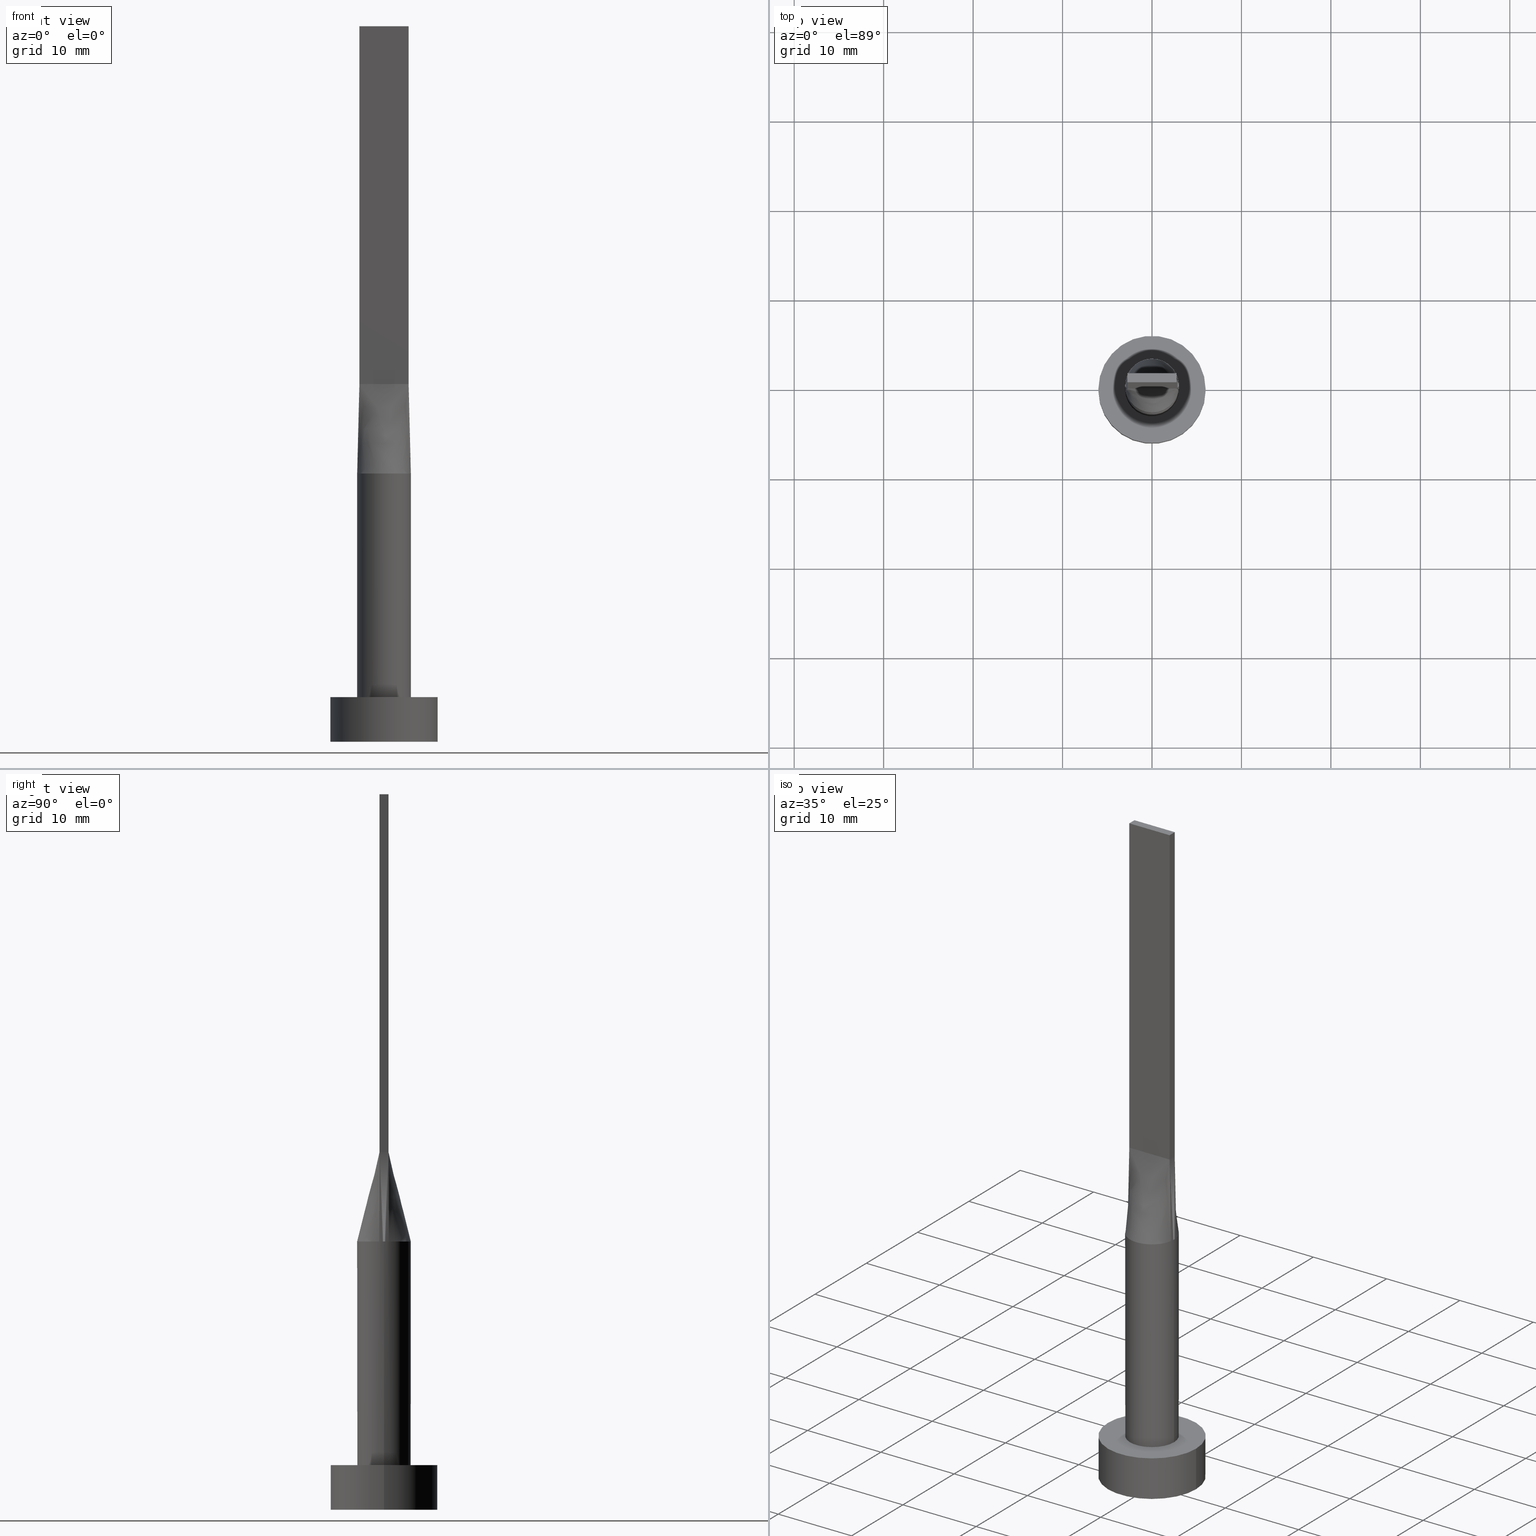
[diagram: canonical four-view strip — front | top / right | iso, engineering-drawing reading convention]
A machine part, canonical four-view strip (front | top / right | iso — engineering-drawing reading convention). The complete STEP part file that produces these views, byte-faithful:
ISO-10303-21;
HEADER;
FILE_DESCRIPTION (( 'STEP AP203' ),
    '1' );
FILE_NAME ('6269.STEP',
    '2023-02-13T10:31:17',
    ( '' ),
    ( '' ),
    'SwSTEP 2.0',
    'SolidWorks 2019',
    '' );
FILE_SCHEMA (( 'CONFIG_CONTROL_DESIGN' ));
ENDSEC;

DATA;
#1 = ORIENTED_EDGE ( 'NONE', *, *, #352, .F. ) ;
#2 = SECURITY_CLASSIFICATION ( '', '', #349 ) ;
#3 = DIRECTION ( 'NONE',  ( 0.000000000000000000, 0.000000000000000000, 1.000000000000000000 ) ) ;
#4 = DIRECTION ( 'NONE',  ( 0.000000000000000000, 0.000000000000000000, 1.000000000000000000 ) ) ;
#5 = CARTESIAN_POINT ( 'NONE',  ( -2.382399439808189356, -1.857547746650220599, 30.00000000000000711 ) ) ;
#6 =( NAMED_UNIT ( * ) SI_UNIT ( $, .STERADIAN. ) SOLID_ANGLE_UNIT ( ) );
#7 = FACE_OUTER_BOUND ( 'NONE', #514, .T. ) ;
#8 = B_SPLINE_CURVE_WITH_KNOTS ( 'NONE', 3,
 ( #234, #415, #73, #77, #217, #480, #266, #208, #390, #301, #80, #436, #434, #567, #303, #474, #431, #172 ),
 .UNSPECIFIED., .F., .F.,
 ( 4, 2, 2, 2, 2, 2, 2, 2, 4 ),
 ( 0.000000000000000000, 0.1250000000000000000, 0.2500000000000000000, 0.3750000000000000000, 0.5000000000000000000, 0.6250000000000000000, 0.7500000000000000000, 0.8750000000000000000, 1.000000000000000000 ),
 .UNSPECIFIED. ) ;
#9 = CARTESIAN_POINT ( 'NONE',  ( -2.850804865149861644, -0.5183281572999741682, 35.00000000000000000 ) ) ;
#10 = CARTESIAN_POINT ( 'NONE',  ( 0.000000000000000000, 0.000000000000000000, 30.00000000000000355 ) ) ;
#11 = DIRECTION ( 'NONE',  ( 1.000000000000000000, 0.000000000000000000, 0.000000000000000000 ) ) ;
#12 = EDGE_CURVE ( 'NONE', #359, #119, #130, .T. ) ;
#13 = AXIS2_PLACEMENT_3D ( 'NONE', #409, #458, #443 ) ;
#14 = LINE ( 'NONE', #149, #41 ) ;
#15 = CARTESIAN_POINT ( 'NONE',  ( 2.951609730299722401, -0.5366563145999492246, 30.00000000000000355 ) ) ;
#16 = DIRECTION ( 'NONE',  ( 1.000000000000000000, 0.000000000000000000, 0.000000000000000000 ) ) ;
#17 = LINE ( 'NONE', #389, #407 ) ;
#18 = ADVANCED_FACE ( 'NONE', ( #171 ), #348, .T. ) ;
#19 = CLOSED_SHELL ( 'NONE', ( #469, #291, #18, #489, #76, #358, #439, #419, #216, #561, #448, #203, #312, #307, #538 ) ) ;
#20 = VECTOR ( 'NONE', #340, 1000.000000000000114 ) ;
#21 = ORIENTED_EDGE ( 'NONE', *, *, #253, .F. ) ;
#22 = DATE_AND_TIME ( #261, #184 ) ;
#23 = LINE ( 'NONE', #381, #494 ) ;
#24 = DIRECTION ( 'NONE',  ( 0.000000000000000000, 0.000000000000000000, 1.000000000000000000 ) ) ;
#25 = CARTESIAN_POINT ( 'NONE',  ( 2.750000000000000000, -0.4999999999999997780, 40.00000000000000000 ) ) ;
#26 = ORIENTED_EDGE ( 'NONE', *, *, #400, .T. ) ;
#27 = CARTESIAN_POINT ( 'NONE',  ( -2.829409566978765334, 1.041313647073049298, 30.00000000000001066 ) ) ;
#28 = EDGE_CURVE ( 'NONE', #94, #29, #428, .T. ) ;
#29 = VERTEX_POINT ( 'NONE', #376 ) ;
#30 = CIRCLE ( 'NONE', #363, 3.000000000000000444 ) ;
#31 = CARTESIAN_POINT ( 'NONE',  ( -2.567367750129864845, -1.580669302822274691, 30.00000000000001066 ) ) ;
#32 = PERSON_AND_ORGANIZATION_ROLE ( 'creator' ) ;
#33 = DIRECTION ( 'NONE',  ( -0.000000000000000000, -0.000000000000000000, -1.000000000000000000 ) ) ;
#34 = DIRECTION ( 'NONE',  ( 1.000000000000000000, 0.000000000000000000, 0.000000000000000000 ) ) ;
#35 = CALENDAR_DATE ( 2023, 13, 2 ) ;
#36 = EDGE_CURVE ( 'NONE', #338, #280, #533, .T. ) ;
#37 = CARTESIAN_POINT ( 'NONE',  ( -2.291666666666666519, -0.4999999999999994449, 39.99999999999999289 ) ) ;
#38 = DIRECTION ( 'NONE',  ( -0.000000000000000000, -0.000000000000000000, -1.000000000000000000 ) ) ;
#39 = ORIENTED_EDGE ( 'NONE', *, *, #253, .T. ) ;
#40 = CALENDAR_DATE ( 2023, 13, 2 ) ;
#41 = VECTOR ( 'NONE', #497, 1000.000000000000114 ) ;
#42 = CARTESIAN_POINT ( 'NONE',  ( 0.000000000000000000, 0.000000000000000000, 5.000000000000000000 ) ) ;
#43 = ORIENTED_EDGE ( 'NONE', *, *, #271, .T. ) ;
#44 = DIRECTION ( 'NONE',  ( 0.000000000000000000, 0.000000000000000000, 1.000000000000000000 ) ) ;
#45 = EDGE_LOOP ( 'NONE', ( #311, #517 ) ) ;
#46 = LINE ( 'NONE', #181, #382 ) ;
#47 = DIRECTION ( 'NONE',  ( 1.000000000000000000, 0.000000000000000000, 0.000000000000000000 ) ) ;
#48 = CARTESIAN_POINT ( 'NONE',  ( -2.567367750129864401, 1.580669302822275357, 30.00000000000001421 ) ) ;
#49 = CARTESIAN_POINT ( 'NONE',  ( -2.983609730299723317, -0.3606563145999489572, 30.00000000000000355 ) ) ;
#50 = AXIS2_PLACEMENT_3D ( 'NONE', #413, #153, #495 ) ;
#51 = DIRECTION ( 'NONE',  ( -1.000000000000000000, 0.000000000000000000, 0.000000000000000000 ) ) ;
#52 = CARTESIAN_POINT ( 'NONE',  ( -1.833333333333333481, -0.4999999999999995559, 39.99999999999999289 ) ) ;
#53 = CARTESIAN_POINT ( 'NONE',  ( 0.2291666666666662966, 0.5000000000000002220, 40.00000000000000000 ) ) ;
#54 = CARTESIAN_POINT ( 'NONE',  ( -2.750000000000000000, 0.1666666666666652696, 39.99999999999999289 ) ) ;
#55 = CARTESIAN_POINT ( 'NONE',  ( 2.750000000000000000, 0.5000000000000002220, 80.00000000000000000 ) ) ;
#56 = CARTESIAN_POINT ( 'NONE',  ( 0.4583333333333330373, 0.5000000000000002220, 39.99999999999999289 ) ) ;
#57 = APPROVAL ( #339, 'NEUR�EN�' ) ;
#58 = CARTESIAN_POINT ( 'NONE',  ( -2.382399439808186692, 1.857547746650221265, 30.00000000000001066 ) ) ;
#59 = CARTESIAN_POINT ( 'NONE',  ( 0.000000000000000000, 0.000000000000000000, 30.00000000000000355 ) ) ;
#60 = VECTOR ( 'NONE', #365, 1000.000000000000000 ) ;
#61 = DIRECTION ( 'NONE',  ( 0.02015674154923146819, -0.003664862099860173583, 0.9997901152521495582 ) ) ;
#62 = AXIS2_PLACEMENT_3D ( 'NONE', #59, #298, #11 ) ;
#63 = CARTESIAN_POINT ( 'NONE',  ( 2.829409566978765334, -1.041313647073049742, 30.00000000000001066 ) ) ;
#64 = COORDINATED_UNIVERSAL_TIME_OFFSET ( 1, 0, .AHEAD. ) ;
#65 = EDGE_CURVE ( 'NONE', #535, #359, #289, .T. ) ;
#66 = ORIENTED_EDGE ( 'NONE', *, *, #127, .T. ) ;
#67 = CARTESIAN_POINT ( 'NONE',  ( 3.000000000000000444, 3.673940397442060361E-16, 30.00000000000000355 ) ) ;
#68 = DATE_AND_TIME ( #120, #176 ) ;
#69 = DIRECTION ( 'NONE',  ( 1.000000000000000000, 0.000000000000000000, 0.000000000000000000 ) ) ;
#70 = CIRCLE ( 'NONE', #148, 3.000000000000000444 ) ;
#71 = SHAPE_DEFINITION_REPRESENTATION ( #193, #268 ) ;
#72 = DIRECTION ( 'NONE',  ( 1.000000000000000000, 0.000000000000000000, -0.000000000000000000 ) ) ;
#73 = CARTESIAN_POINT ( 'NONE',  ( 2.829409566978765778, 1.041313647073049298, 30.00000000000001421 ) ) ;
#74 = ORIENTED_EDGE ( 'NONE', *, *, #504, .F. ) ;
#75 = DATE_TIME_ROLE ( 'creation_date' ) ;
#76 = ADVANCED_FACE ( 'NONE', ( #137 ), #405, .F. ) ;
#77 = CARTESIAN_POINT ( 'NONE',  ( 2.567367750129863957, 1.580669302822274913, 30.00000000000001066 ) ) ;
#78 = EDGE_LOOP ( 'NONE', ( #424, #129, #440, #575 ) ) ;
#79 = CARTESIAN_POINT ( 'NONE',  ( -2.750000000000000000, -0.4999999999999994449, 40.00000000000000000 ) ) ;
#80 = CARTESIAN_POINT ( 'NONE',  ( -0.8331239790496237640, 2.909606296598777231, 30.00000000000000000 ) ) ;
#81 = VERTEX_POINT ( 'NONE', #185 ) ;
#82 = VECTOR ( 'NONE', #422, 1000.000000000000000 ) ;
#83 = CARTESIAN_POINT ( 'NONE',  ( 2.951609730299722845, 0.5366563145999491136, 30.00000000000000355 ) ) ;
#84 = VECTOR ( 'NONE', #387, 1000.000000000000000 ) ;
#85 = APPROVAL_DATE_TIME ( #68, #371 ) ;
#86 = ORIENTED_EDGE ( 'NONE', *, *, #511, .F. ) ;
#87 = EDGE_CURVE ( 'NONE', #89, #119, #501, .T. ) ;
#88 = CARTESIAN_POINT ( 'NONE',  ( -2.750000000000000000, -0.4999999999999994449, 80.00000000000000000 ) ) ;
#89 = VERTEX_POINT ( 'NONE', #110 ) ;
#90 = DIRECTION ( 'NONE',  ( 1.000000000000000000, 0.000000000000000000, -0.000000000000000000 ) ) ;
#91 = APPROVAL_ROLE ( '' ) ;
#92 = AXIS2_PLACEMENT_3D ( 'NONE', #477, #38, #411 ) ;
#93 = ORIENTED_EDGE ( 'NONE', *, *, #144, .T. ) ;
#94 = VERTEX_POINT ( 'NONE', #198 ) ;
#95 = FACE_OUTER_BOUND ( 'NONE', #202, .T. ) ;
#96 = ORIENTED_EDGE ( 'NONE', *, *, #337, .T. ) ;
#97 = CARTESIAN_POINT ( 'NONE',  ( 0.000000000000000000, 0.000000000000000000, 30.00000000000000355 ) ) ;
#98 = CARTESIAN_POINT ( 'NONE',  ( -6.000000000000000888, 0.000000000000000000, 0.000000000000000000 ) ) ;
#99 = MECHANICAL_CONTEXT ( 'NONE', #145, 'mechanical' ) ;
#100 = CARTESIAN_POINT ( 'NONE',  ( -1.604166666666666963, 0.5000000000000002220, 39.99999999999999289 ) ) ;
#101 =( NAMED_UNIT ( * ) PLANE_ANGLE_UNIT ( ) SI_UNIT ( $, .RADIAN. ) );
#102 = LINE ( 'NONE', #378, #60 ) ;
#103 = PERSON_AND_ORGANIZATION ( #558, #565 ) ;
#104 = AXIS2_PLACEMENT_3D ( 'NONE', #204, #385, #247 ) ;
#105 = CYLINDRICAL_SURFACE ( 'NONE', #227, 3.000000000000000444 ) ;
#106 = EDGE_CURVE ( 'NONE', #568, #338, #102, .T. ) ;
#107 = ORIENTED_EDGE ( 'NONE', *, *, #226, .T. ) ;
#108 = CARTESIAN_POINT ( 'NONE',  ( 0.000000000000000000, 0.000000000000000000, 0.000000000000000000 ) ) ;
#109 = DIRECTION ( 'NONE',  ( 0.000000000000000000, 0.000000000000000000, 1.000000000000000000 ) ) ;
#110 = CARTESIAN_POINT ( 'NONE',  ( -2.951881273711813858, 0.5367053345652121887, 30.00000000000000355 ) ) ;
#111 = CARTESIAN_POINT ( 'NONE',  ( 2.750000000000000000, -0.4999999999999997780, 80.00000000000000000 ) ) ;
#112 = EDGE_CURVE ( 'NONE', #334, #516, #506, .T. ) ;
#113 = AXIS2_PLACEMENT_3D ( 'NONE', #532, #486, #90 ) ;
#114 = CIRCLE ( 'NONE', #235, 6.000000000000000888 ) ;
#115 = EDGE_LOOP ( 'NONE', ( #250, #478, #142, #470 ) ) ;
#116 = CARTESIAN_POINT ( 'NONE',  ( 2.520833333333333037, -0.4999999999999997780, 39.99999999999999289 ) ) ;
#117 = CARTESIAN_POINT ( 'NONE',  ( -2.750000000000000000, 0.5000000000000002220, 80.00000000000000000 ) ) ;
#118 = CARTESIAN_POINT ( 'NONE',  ( 2.983609730299722429, -0.3606563145999500120, 30.00000000000000355 ) ) ;
#119 = VERTEX_POINT ( 'NONE', #488 ) ;
#120 = CALENDAR_DATE ( 2023, 13, 2 ) ;
#121 = PLANE ( 'NONE',  #388 ) ;
#122 = CC_DESIGN_SECURITY_CLASSIFICATION ( #2, ( #508 ) ) ;
#123 = FACE_OUTER_BOUND ( 'NONE', #525, .T. ) ;
#124 = EDGE_CURVE ( 'NONE', #535, #163, #492, .T. ) ;
#125 = COORDINATED_UNIVERSAL_TIME_OFFSET ( 1, 0, .AHEAD. ) ;
#126 = CARTESIAN_POINT ( 'NONE',  ( 2.750000000000000000, -0.1666666666666653529, 39.99999999999999289 ) ) ;
#127 = EDGE_CURVE ( 'NONE', #516, #29, #237, .T. ) ;
#128 = VECTOR ( 'NONE', #444, 1000.000000000000000 ) ;
#129 = ORIENTED_EDGE ( 'NONE', *, *, #284, .F. ) ;
#130 = LINE ( 'NONE', #309, #132 ) ;
#131 = EDGE_LOOP ( 'NONE', ( #86, #269, #437, #399 ) ) ;
#132 = VECTOR ( 'NONE', #220, 1000.000000000000000 ) ;
#133 = CC_DESIGN_PERSON_AND_ORGANIZATION_ASSIGNMENT ( #219, #32, ( #508 ) ) ;
#134 = VECTOR ( 'NONE', #151, 1000.000000000000000 ) ;
#135 = ORIENTED_EDGE ( 'NONE', *, *, #284, .T. ) ;
#136 = CARTESIAN_POINT ( 'NONE',  ( 2.567367750129863957, 1.580669302822274913, 30.00000000000001066 ) ) ;
#137 = FACE_OUTER_BOUND ( 'NONE', #177, .T. ) ;
#138 = CARTESIAN_POINT ( 'NONE',  ( 2.829409566978765778, 1.041313647073049298, 30.00000000000001421 ) ) ;
#139 = CARTESIAN_POINT ( 'NONE',  ( 0.000000000000000000, 0.000000000000000000, 5.000000000000000000 ) ) ;
#140 = CARTESIAN_POINT ( 'NONE',  ( 1.566158656300001395, -2.589797565249319256, 30.00000000000000000 ) ) ;
#141 = PERSON_AND_ORGANIZATION ( #558, #565 ) ;
#142 = ORIENTED_EDGE ( 'NONE', *, *, #226, .F. ) ;
#143 = CARTESIAN_POINT ( 'NONE',  ( 0.000000000000000000, 0.000000000000000000, 0.000000000000000000 ) ) ;
#144 = EDGE_CURVE ( 'NONE', #578, #531, #23, .T. ) ;
#145 = APPLICATION_CONTEXT ( 'configuration controlled 3d designs of mechanical parts and assemblies' ) ;
#146 = UNCERTAINTY_MEASURE_WITH_UNIT (LENGTH_MEASURE( 1.000000000000000082E-05 ), #156, 'distance_accuracy_value', 'NONE');
#147 = CARTESIAN_POINT ( 'NONE',  ( -2.750000000000000000, -0.3333333333333339255, 39.99999999999999289 ) ) ;
#148 = AXIS2_PLACEMENT_3D ( 'NONE', #500, #109, #455 ) ;
#149 = CARTESIAN_POINT ( 'NONE',  ( 2.850804865149861200, -0.5183281572999745013, 35.00000000000000000 ) ) ;
#150 = CARTESIAN_POINT ( 'NONE',  ( -0.9166666666666669627, 0.5000000000000002220, 39.99999999999999289 ) ) ;
#151 = DIRECTION ( 'NONE',  ( -0.000000000000000000, -0.000000000000000000, -1.000000000000000000 ) ) ;
#152 = CARTESIAN_POINT ( 'NONE',  ( -2.750000000000000000, -0.4999999999999994449, 80.00000000000000000 ) ) ;
#153 = DIRECTION ( 'NONE',  ( 0.000000000000000000, -1.000000000000000000, 0.000000000000000000 ) ) ;
#154 = APPROVAL_ROLE ( '' ) ;
#155 = CC_DESIGN_PERSON_AND_ORGANIZATION_ASSIGNMENT ( #174, #355, ( #2 ) ) ;
#156 =( LENGTH_UNIT ( ) NAMED_UNIT ( * ) SI_UNIT ( .MILLI., .METRE. ) );
#157 = DIRECTION ( 'NONE',  ( -1.000000000000000000, 0.000000000000000000, 0.000000000000000000 ) ) ;
#158 = CALENDAR_DATE ( 2023, 13, 2 ) ;
#159 = ORIENTED_EDGE ( 'NONE', *, *, #511, .T. ) ;
#160 = CARTESIAN_POINT ( 'NONE',  ( -2.750000000000000000, -0.4999999999999994449, 40.00000000000000000 ) ) ;
#161 = FACE_OUTER_BOUND ( 'NONE', #304, .T. ) ;
#162 = CARTESIAN_POINT ( 'NONE',  ( 2.951609730299722401, -0.5366563145999498907, 30.00000000000000355 ) ) ;
#163 = VERTEX_POINT ( 'NONE', #117 ) ;
#164 = CARTESIAN_POINT ( 'NONE',  ( -2.291666666666666519, 0.5000000000000002220, 39.99999999999999289 ) ) ;
#165 = CC_DESIGN_DATE_AND_TIME_ASSIGNMENT ( #347, #264, ( #2 ) ) ;
#166 = ORIENTED_EDGE ( 'NONE', *, *, #412, .T. ) ;
#167 = AXIS2_PLACEMENT_3D ( 'NONE', #108, #450, #47 ) ;
#168 = EDGE_CURVE ( 'NONE', #568, #270, #459, .T. ) ;
#169 = CARTESIAN_POINT ( 'NONE',  ( -0.4583333333333340365, -0.4999999999999995559, 39.99999999999999289 ) ) ;
#170 = CARTESIAN_POINT ( 'NONE',  ( -2.750000000000000000, 0.5000000000000002220, 40.00000000000000000 ) ) ;
#171 = FACE_OUTER_BOUND ( 'NONE', #369, .T. ) ;
#172 = CARTESIAN_POINT ( 'NONE',  ( -2.951881273711813858, 0.5367053345652121887, 30.00000000000000355 ) ) ;
#173 = EDGE_LOOP ( 'NONE', ( #259, #212, #475, #528, #467, #421 ) ) ;
#174 = PERSON_AND_ORGANIZATION ( #558, #565 ) ;
#175 = B_SPLINE_SURFACE_WITH_KNOTS ( 'NONE', 3, 1, ( 
 ( #479, #170 ),
 ( #215, #397 ),
 ( #364, #54 ),
 ( #539, #317 ),
 ( #49, #147 ),
 ( #328, #551 ) ),
 .UNSPECIFIED., .F., .F., .F.,
 ( 4, 2, 4 ),
 ( 2, 2 ),
 ( 0.000000000000000000, 0.5000000000000000000, 1.000000000000000000 ),
 ( 0.000000000000000000, 1.000000000000000000 ),
 .UNSPECIFIED. ) ;
#176 = LOCAL_TIME ( 11, 31, 17.00000000000000000, #341 ) ;
#177 = EDGE_LOOP ( 'NONE', ( #466, #432 ) ) ;
#178 = CARTESIAN_POINT ( 'NONE',  ( 2.999804865149861666, 7.183978618307599791E-16, 30.00000000000000355 ) ) ;
#179 = DATE_AND_TIME ( #35, #310 ) ;
#180 = ORIENTED_EDGE ( 'NONE', *, *, #188, .T. ) ;
#181 = CARTESIAN_POINT ( 'NONE',  ( 6.000000000000000888, 7.347880794884120722E-16, 5.000000000000000000 ) ) ;
#182 = EDGE_CURVE ( 'NONE', #163, #481, #461, .T. ) ;
#183 = ORIENTED_EDGE ( 'NONE', *, *, #352, .T. ) ;
#184 = LOCAL_TIME ( 11, 31, 17.00000000000000000, #125 ) ;
#185 = CARTESIAN_POINT ( 'NONE',  ( -2.999804865149861666, -2.046477192139111704E-15, 30.00000000000000355 ) ) ;
#186 = CARTESIAN_POINT ( 'NONE',  ( 2.750000000000000000, 0.5000000000000002220, 40.00000000000000000 ) ) ;
#187 = CARTESIAN_POINT ( 'NONE',  ( -0.2291666666666674346, -0.4999999999999995559, 40.00000000000000000 ) ) ;
#188 = EDGE_CURVE ( 'NONE', #29, #94, #361, .T. ) ;
#189 = ORIENTED_EDGE ( 'NONE', *, *, #430, .T. ) ;
#190 = CARTESIAN_POINT ( 'NONE',  ( 0.000000000000000000, 0.000000000000000000, 5.000000000000000000 ) ) ;
#191 = DIRECTION ( 'NONE',  ( -0.000000000000000000, -0.000000000000000000, -1.000000000000000000 ) ) ;
#192 = DIRECTION ( 'NONE',  ( -0.000000000000000000, -0.000000000000000000, -1.000000000000000000 ) ) ;
#193 = PRODUCT_DEFINITION_SHAPE ( 'NONE', 'NONE',  #462 ) ;
#194 = CARTESIAN_POINT ( 'NONE',  ( -2.750000000000000000, 0.5000000000000002220, 80.00000000000000000 ) ) ;
#195 = VECTOR ( 'NONE', #191, 1000.000000000000000 ) ;
#196 = DIRECTION ( 'NONE',  ( -1.000000000000000000, 0.000000000000000000, 0.000000000000000000 ) ) ;
#197 = CARTESIAN_POINT ( 'NONE',  ( 1.145833333333333037, 0.5000000000000002220, 39.99999999999999289 ) ) ;
#198 = CARTESIAN_POINT ( 'NONE',  ( -3.000000000000000444, 0.000000000000000000, 5.000000000000000000 ) ) ;
#199 = CARTESIAN_POINT ( 'NONE',  ( 2.291666666666666075, -0.4999999999999997780, 39.99999999999999289 ) ) ;
#200 = ORIENTED_EDGE ( 'NONE', *, *, #182, .T. ) ;
#201 = ORIENTED_EDGE ( 'NONE', *, *, #12, .F. ) ;
#202 = EDGE_LOOP ( 'NONE', ( #166, #96, #518, #43 ) ) ;
#203 = ADVANCED_FACE ( 'NONE', ( #383 ), #121, .F. ) ;
#204 = CARTESIAN_POINT ( 'NONE',  ( 0.000000000000000000, 0.000000000000000000, 5.000000000000000000 ) ) ;
#205 = CARTESIAN_POINT ( 'NONE',  ( 2.750000000000000000, -0.3333333333333324267, 39.99999999999999289 ) ) ;
#206 = CARTESIAN_POINT ( 'NONE',  ( -2.750000000000000000, 0.5000000000000002220, 80.00000000000000000 ) ) ;
#207 = VECTOR ( 'NONE', #61, 1000.000000000000114 ) ;
#208 = CARTESIAN_POINT ( 'NONE',  ( 0.8331239790496237640, 2.909606296598776787, 30.00000000000000355 ) ) ;
#209 = AXIS2_PLACEMENT_3D ( 'NONE', #139, #579, #51 ) ;
#210 = EDGE_CURVE ( 'NONE', #531, #359, #17, .T. ) ;
#211 = LINE ( 'NONE', #88, #353 ) ;
#212 = ORIENTED_EDGE ( 'NONE', *, *, #112, .F. ) ;
#213 = DIRECTION ( 'NONE',  ( 1.000000000000000000, -5.913830031739115543E-17, 0.000000000000000000 ) ) ;
#214 = CC_DESIGN_APPROVAL ( #371, ( #462 ) ) ;
#215 = CARTESIAN_POINT ( 'NONE',  ( -2.983609730299722429, 0.3606563145999497344, 30.00000000000000355 ) ) ;
#216 = ADVANCED_FACE ( 'NONE', ( #577 ), #175, .T. ) ;
#217 = CARTESIAN_POINT ( 'NONE',  ( 2.382399439808187580, 1.857547746650221709, 30.00000000000000711 ) ) ;
#218 = CARTESIAN_POINT ( 'NONE',  ( 2.750000000000000000, -0.4999999999999997780, 40.00000000000000000 ) ) ;
#219 = PERSON_AND_ORGANIZATION ( #558, #565 ) ;
#220 = DIRECTION ( 'NONE',  ( -1.000000000000000000, -0.000000000000000000, -0.000000000000000000 ) ) ;
#221 = CARTESIAN_POINT ( 'NONE',  ( -1.604166666666666963, -0.4999999999999995559, 39.99999999999999289 ) ) ;
#222 = DESIGN_CONTEXT ( 'detailed design', #571, 'design' ) ;
#223 = DIRECTION ( 'NONE',  ( -0.000000000000000000, -0.000000000000000000, -1.000000000000000000 ) ) ;
#224 = CARTESIAN_POINT ( 'NONE',  ( 2.750000000000000000, 0.5000000000000002220, 80.00000000000000000 ) ) ;
#225 = COORDINATED_UNIVERSAL_TIME_OFFSET ( 1, 0, .AHEAD. ) ;
#226 = EDGE_CURVE ( 'NONE', #550, #535, #322, .T. ) ;
#227 = AXIS2_PLACEMENT_3D ( 'NONE', #10, #192, #157 ) ;
#228 = DIRECTION ( 'NONE',  ( 0.000000000000000000, 0.000000000000000000, 1.000000000000000000 ) ) ;
#229 = CARTESIAN_POINT ( 'NONE',  ( -0.8331239790496237640, 2.909606296598777231, 30.00000000000000000 ) ) ;
#230 = B_SPLINE_SURFACE_WITH_KNOTS ( 'NONE', 3, 1, ( 
 ( #406, #186 ),
 ( #366, #542 ),
 ( #138, #276 ),
 ( #136, #491 ),
 ( #368, #496 ),
 ( #410, #197 ),
 ( #449, #324 ),
 ( #279, #56 ),
 ( #581, #53 ),
 ( #402, #537 ),
 ( #229, #232 ),
 ( #373, #150 ),
 ( #329, #452 ),
 ( #58, #100 ),
 ( #48, #296 ),
 ( #27, #164 ),
 ( #414, #285 ),
 ( #505, #377 ) ),
 .UNSPECIFIED., .F., .F., .F.,
 ( 4, 2, 2, 2, 2, 2, 2, 2, 4 ),
 ( 2, 2 ),
 ( 0.000000000000000000, 0.1250000000000000000, 0.2500000000000000000, 0.3750000000000000000, 0.5000000000000000000, 0.6250000000000000000, 0.7500000000000000000, 0.8750000000000000000, 1.000000000000000000 ),
 ( 0.000000000000000000, 1.000000000000000000 ),
 .UNSPECIFIED. ) ;
#231 = CARTESIAN_POINT ( 'NONE',  ( 2.750000000000000000, -0.4999999999999997780, 80.00000000000000000 ) ) ;
#232 = CARTESIAN_POINT ( 'NONE',  ( -0.4583333333333337034, 0.5000000000000002220, 39.99999999999999289 ) ) ;
#233 = LINE ( 'NONE', #453, #20 ) ;
#234 = CARTESIAN_POINT ( 'NONE',  ( 2.951871110830718514, 0.5367036202482695639, 30.00000000000000355 ) ) ;
#235 = AXIS2_PLACEMENT_3D ( 'NONE', #42, #44, #34 ) ;
#236 = APPROVAL ( #425, 'NEUR�EN�' ) ;
#237 = LINE ( 'NONE', #67, #404 ) ;
#238 = CARTESIAN_POINT ( 'NONE',  ( 0.000000000000000000, 0.000000000000000000, 5.000000000000000000 ) ) ;
#239 = APPROVAL_ROLE ( '' ) ;
#240 = ORIENTED_EDGE ( 'NONE', *, *, #36, .T. ) ;
#241 = DIRECTION ( 'NONE',  ( 0.000000000000000000, -1.000000000000000000, 0.000000000000000000 ) ) ;
#242 = ORIENTED_EDGE ( 'NONE', *, *, #210, .F. ) ;
#243 = FACE_OUTER_BOUND ( 'NONE', #254, .T. ) ;
#244 = EDGE_CURVE ( 'NONE', #163, #119, #281, .T. ) ;
#245 = PERSON_AND_ORGANIZATION ( #558, #565 ) ;
#246 = AXIS2_PLACEMENT_3D ( 'NONE', #293, #252, #69 ) ;
#247 = DIRECTION ( 'NONE',  ( 1.000000000000000000, 0.000000000000000000, 0.000000000000000000 ) ) ;
#248 = CARTESIAN_POINT ( 'NONE',  ( 0.000000000000000000, 0.000000000000000000, 30.00000000000000355 ) ) ;
#249 = ORIENTED_EDGE ( 'NONE', *, *, #124, .T. ) ;
#250 = ORIENTED_EDGE ( 'NONE', *, *, #210, .T. ) ;
#251 = PERSON_AND_ORGANIZATION ( #558, #565 ) ;
#252 = DIRECTION ( 'NONE',  ( 0.000000000000000000, 0.000000000000000000, 1.000000000000000000 ) ) ;
#253 = EDGE_CURVE ( 'NONE', #89, #81, #70, .T. ) ;
#254 = EDGE_LOOP ( 'NONE', ( #267, #356, #344, #515 ) ) ;
#255 = CARTESIAN_POINT ( 'NONE',  ( 2.999609730299722887, 0.1803281572999744509, 30.00000000000000355 ) ) ;
#256 = CARTESIAN_POINT ( 'NONE',  ( -2.829409566978767110, -1.041313647073048854, 30.00000000000001421 ) ) ;
#257 = AXIS2_PLACEMENT_3D ( 'NONE', #556, #318, #541 ) ;
#258 = APPROVAL_PERSON_ORGANIZATION ( #251, #236, #91 ) ;
#259 = ORIENTED_EDGE ( 'NONE', *, *, #127, .F. ) ;
#260 = CARTESIAN_POINT ( 'NONE',  ( 2.750000000000000000, 0.5000000000000002220, 40.00000000000000000 ) ) ;
#261 = CALENDAR_DATE ( 2023, 13, 2 ) ;
#262 = EDGE_LOOP ( 'NONE', ( #39, #354, #321, #384, #313 ) ) ;
#263 = ORIENTED_EDGE ( 'NONE', *, *, #106, .T. ) ;
#264 = DATE_TIME_ROLE ( 'classification_date' ) ;
#265 = CC_DESIGN_DATE_AND_TIME_ASSIGNMENT ( #22, #75, ( #462 ) ) ;
#266 = CARTESIAN_POINT ( 'NONE',  ( 1.566158656300002061, 2.589797565249318811, 30.00000000000000000 ) ) ;
#267 = ORIENTED_EDGE ( 'NONE', *, *, #12, .T. ) ;
#268 = ADVANCED_BREP_SHAPE_REPRESENTATION ( '6269', ( #569, #13 ), #446 ) ;
#269 = ORIENTED_EDGE ( 'NONE', *, *, #504, .T. ) ;
#270 = VERTEX_POINT ( 'NONE', #417 ) ;
#271 = EDGE_CURVE ( 'NONE', #578, #485, #278, .T. ) ;
#272 = PLANE ( 'NONE',  #302 ) ;
#273 = CARTESIAN_POINT ( 'NONE',  ( -1.145833333333333703, -0.4999999999999995559, 39.99999999999999289 ) ) ;
#274 = CARTESIAN_POINT ( 'NONE',  ( 0.000000000000000000, 0.000000000000000000, 0.000000000000000000 ) ) ;
#275 = DIRECTION ( 'NONE',  ( -1.000000000000000000, 0.000000000000000000, 0.000000000000000000 ) ) ;
#276 = CARTESIAN_POINT ( 'NONE',  ( 2.291666666666666519, 0.5000000000000002220, 39.99999999999999289 ) ) ;
#277 = APPROVAL_PERSON_ORGANIZATION ( #287, #57, #239 ) ;
#278 = LINE ( 'NONE', #9, #416 ) ;
#279 = CARTESIAN_POINT ( 'NONE',  ( 0.8331239790496237640, 2.909606296598776787, 30.00000000000000355 ) ) ;
#280 = VERTEX_POINT ( 'NONE', #553 ) ;
#281 = LINE ( 'NONE', #194, #134 ) ;
#282 = FACE_OUTER_BOUND ( 'NONE', #131, .T. ) ;
#283 = PLANE ( 'NONE',  #50 ) ;
#284 = EDGE_CURVE ( 'NONE', #481, #578, #367, .T. ) ;
#286 = DIRECTION ( 'NONE',  ( 0.000000000000000000, 1.000000000000000000, 0.000000000000000000 ) ) ;
#285 = CARTESIAN_POINT ( 'NONE',  ( -2.520833333333333037, 0.5000000000000002220, 39.99999999999999289 ) ) ;
#287 = PERSON_AND_ORGANIZATION ( #558, #565 ) ;
#288 = CIRCLE ( 'NONE', #167, 6.000000000000000888 ) ;
#289 = LINE ( 'NONE', #552, #342 ) ;
#290 = DIRECTION ( 'NONE',  ( 1.000000000000000000, -5.913830031739115543E-17, 0.000000000000000000 ) ) ;
#291 = ADVANCED_FACE ( 'NONE', ( #282 ), #441, .T. ) ;
#292 = VERTEX_POINT ( 'NONE', #401 ) ;
#293 = CARTESIAN_POINT ( 'NONE',  ( 0.000000000000000000, 0.000000000000000000, 5.000000000000000000 ) ) ;
#294 = LOCAL_TIME ( 11, 31, 17.00000000000000000, #64 ) ;
#295 = CARTESIAN_POINT ( 'NONE',  ( -2.750000000000000000, 0.5000000000000002220, 80.00000000000000000 ) ) ;
#296 = CARTESIAN_POINT ( 'NONE',  ( -1.833333333333333481, 0.5000000000000002220, 39.99999999999999289 ) ) ;
#297 = ORIENTED_EDGE ( 'NONE', *, *, #392, .F. ) ;
#298 = DIRECTION ( 'NONE',  ( 0.000000000000000000, 0.000000000000000000, 1.000000000000000000 ) ) ;
#299 = CC_DESIGN_PERSON_AND_ORGANIZATION_ASSIGNMENT ( #476, #468, ( #508 ) ) ;
#300 = DIRECTION ( 'NONE',  ( -0.000000000000000000, 0.000000000000000000, -1.000000000000000000 ) ) ;
#301 = CARTESIAN_POINT ( 'NONE',  ( -0.4172881767044976375, 2.999999999999999556, 29.99999999999999645 ) ) ;
#302 = AXIS2_PLACEMENT_3D ( 'NONE', #331, #549, #502 ) ;
#303 = CARTESIAN_POINT ( 'NONE',  ( -2.567367750129864401, 1.580669302822275357, 30.00000000000001421 ) ) ;
#304 = EDGE_LOOP ( 'NONE', ( #297, #66, #180, #574, #21, #1 ) ) ;
#305 = CYLINDRICAL_SURFACE ( 'NONE', #92, 3.000000000000000444 ) ;
#306 = EDGE_LOOP ( 'NONE', ( #183, #545, #201, #562 ) ) ;
#307 = ADVANCED_FACE ( 'NONE', ( #319 ), #447, .F. ) ;
#308 = PLANE ( 'NONE',  #113 ) ;
#309 = CARTESIAN_POINT ( 'NONE',  ( -2.750000000000000000, 0.5000000000000002220, 40.00000000000000000 ) ) ;
#310 = LOCAL_TIME ( 11, 31, 17.00000000000000000, #225 ) ;
#311 = ORIENTED_EDGE ( 'NONE', *, *, #28, .F. ) ;
#312 = ADVANCED_FACE ( 'NONE', ( #7 ), #272, .F. ) ;
#313 = ORIENTED_EDGE ( 'NONE', *, *, #87, .F. ) ;
#314 = FACE_OUTER_BOUND ( 'NONE', #306, .T. ) ;
#315 = DIRECTION ( 'NONE',  ( -0.02015674154923150635, -0.003664862099860238635, -0.9997901152521495582 ) ) ;
#316 = CARTESIAN_POINT ( 'NONE',  ( -1.882426928433514224, -2.362790634184934291, 30.00000000000000355 ) ) ;
#317 = CARTESIAN_POINT ( 'NONE',  ( -2.750000000000000000, -0.1666666666666678787, 39.99999999999999289 ) ) ;
#318 = DIRECTION ( 'NONE',  ( 0.000000000000000000, 0.000000000000000000, 1.000000000000000000 ) ) ;
#319 = FACE_OUTER_BOUND ( 'NONE', #115, .T. ) ;
#320 = PERSON_AND_ORGANIZATION_ROLE ( 'design_owner' ) ;
#321 = ORIENTED_EDGE ( 'NONE', *, *, #271, .F. ) ;
#322 = LINE ( 'NONE', #231, #484 ) ;
#323 = CARTESIAN_POINT ( 'NONE',  ( -2.850804865149861200, 0.5183281572999746123, 35.00000000000000000 ) ) ;
#324 = CARTESIAN_POINT ( 'NONE',  ( 0.9166666666666664076, 0.5000000000000002220, 39.99999999999999289 ) ) ;
#325 = ORIENTED_EDGE ( 'NONE', *, *, #112, .T. ) ;
#326 = AXIS2_PLACEMENT_3D ( 'NONE', #238, #435, #433 ) ;
#327 = CARTESIAN_POINT ( 'NONE',  ( 2.983609730299723317, 0.3606563145999492903, 30.00000000000000355 ) ) ;
#328 = CARTESIAN_POINT ( 'NONE',  ( -2.951609730299722845, -0.5366563145999487805, 30.00000000000000355 ) ) ;
#329 = CARTESIAN_POINT ( 'NONE',  ( -1.882426928433513336, 2.362790634184935623, 30.00000000000000711 ) ) ;
#330 = DIRECTION ( 'NONE',  ( 1.000000000000000000, 0.000000000000000000, -0.000000000000000000 ) ) ;
#331 = CARTESIAN_POINT ( 'NONE',  ( -2.750000000000000000, -0.4999999999999994449, 80.00000000000000000 ) ) ;
#332 = CARTESIAN_POINT ( 'NONE',  ( 1.145833333333332371, -0.4999999999999996669, 39.99999999999999289 ) ) ;
#333 = APPROVAL_STATUS ( 'not_yet_approved' ) ;
#334 = VERTEX_POINT ( 'NONE', #362 ) ;
#335 = FACE_BOUND ( 'NONE', #45, .T. ) ;
#336 = AXIS2_PLACEMENT_3D ( 'NONE', #521, #33, #196 ) ;
#337 = EDGE_CURVE ( 'NONE', #334, #531, #14, .T. ) ;
#338 = VERTEX_POINT ( 'NONE', #98 ) ;
#339 = APPROVAL_STATUS ( 'not_yet_approved' ) ;
#340 = DIRECTION ( 'NONE',  ( -0.02015674154923150635, -0.003664862099860195267, 0.9997901152521495582 ) ) ;
#341 = COORDINATED_UNIVERSAL_TIME_OFFSET ( 1, 0, .AHEAD. ) ;
#342 = VECTOR ( 'NONE', #223, 1000.000000000000000 ) ;
#343 = VECTOR ( 'NONE', #241, 1000.000000000000000 ) ;
#344 = ORIENTED_EDGE ( 'NONE', *, *, #124, .F. ) ;
#345 = CARTESIAN_POINT ( 'NONE',  ( 2.999609730299722887, -0.1803281572999752003, 30.00000000000000355 ) ) ;
#346 = EDGE_CURVE ( 'NONE', #280, #338, #288, .T. ) ;
#347 = DATE_AND_TIME ( #40, #523 ) ;
#348 = CYLINDRICAL_SURFACE ( 'NONE', #336, 6.000000000000000888 ) ;
#349 = SECURITY_CLASSIFICATION_LEVEL ( 'unclassified' ) ;
#350 = CARTESIAN_POINT ( 'NONE',  ( -2.907609730299723250, -0.7786563145999485513, 29.99999999999999645 ) ) ;
#351 = AXIS2_PLACEMENT_3D ( 'NONE', #190, #418, #445 ) ;
#352 = EDGE_CURVE ( 'NONE', #292, #89, #8, .T. ) ;
#353 = VECTOR ( 'NONE', #213, 1000.000000000000000 ) ;
#354 = ORIENTED_EDGE ( 'NONE', *, *, #530, .T. ) ;
#355 = PERSON_AND_ORGANIZATION_ROLE ( 'classification_officer' ) ;
#356 = ORIENTED_EDGE ( 'NONE', *, *, #244, .F. ) ;
#357 = DIRECTION ( 'NONE',  ( 1.000000000000000000, 0.000000000000000000, 0.000000000000000000 ) ) ;
#358 = ADVANCED_FACE ( 'NONE', ( #524 ), #305, .T. ) ;
#359 = VERTEX_POINT ( 'NONE', #375 ) ;
#360 = CARTESIAN_POINT ( 'NONE',  ( 2.750000000000000000, -0.4999999999999997780, 80.00000000000000000 ) ) ;
#361 = CIRCLE ( 'NONE', #104, 3.000000000000000444 ) ;
#362 = CARTESIAN_POINT ( 'NONE',  ( 2.951896064709005785, -0.5367080392066734262, 30.00000000000000355 ) ) ;
#363 = AXIS2_PLACEMENT_3D ( 'NONE', #97, #4, #357 ) ;
#364 = CARTESIAN_POINT ( 'NONE',  ( -2.999609730299722887, 0.1803281572999750337, 30.00000000000000355 ) ) ;
#365 = DIRECTION ( 'NONE',  ( -0.000000000000000000, -0.000000000000000000, -1.000000000000000000 ) ) ;
#366 = CARTESIAN_POINT ( 'NONE',  ( 2.907609730299723250, 0.7786563145999496616, 29.99999999999999645 ) ) ;
#367 = LINE ( 'NONE', #152, #195 ) ;
#368 = CARTESIAN_POINT ( 'NONE',  ( 2.382399439808187580, 1.857547746650221709, 30.00000000000000711 ) ) ;
#369 = EDGE_LOOP ( 'NONE', ( #74, #398, #263, #240 ) ) ;
#370 = CARTESIAN_POINT ( 'NONE',  ( -3.000000000000000444, 0.000000000000000000, 30.00000000000000355 ) ) ;
#371 = APPROVAL ( #333, 'NEUR�EN�' ) ;
#372 = CARTESIAN_POINT ( 'NONE',  ( -2.750000000000000000, -0.4999999999999994449, 80.00000000000000000 ) ) ;
#373 = CARTESIAN_POINT ( 'NONE',  ( -1.566158656300002061, 2.589797565249319700, 30.00000000000000000 ) ) ;
#374 = CC_DESIGN_APPROVAL ( #57, ( #2 ) ) ;
#375 = CARTESIAN_POINT ( 'NONE',  ( 2.750000000000000000, 0.5000000000000002220, 40.00000000000000000 ) ) ;
#376 = CARTESIAN_POINT ( 'NONE',  ( 3.000000000000000444, 3.673940397442060361E-16, 5.000000000000000000 ) ) ;
#377 = CARTESIAN_POINT ( 'NONE',  ( -2.750000000000000000, 0.5000000000000002220, 40.00000000000000000 ) ) ;
#378 = CARTESIAN_POINT ( 'NONE',  ( -6.000000000000000888, 0.000000000000000000, 5.000000000000000000 ) ) ;
#379 = CARTESIAN_POINT ( 'NONE',  ( 2.750000000000000000, -0.4999999999999997780, 40.00000000000000000 ) ) ;
#380 = EDGE_CURVE ( 'NONE', #81, #94, #563, .T. ) ;
#381 = CARTESIAN_POINT ( 'NONE',  ( -2.750000000000000000, -0.4999999999999994449, 40.00000000000000000 ) ) ;
#382 = VECTOR ( 'NONE', #396, 1000.000000000000000 ) ;
#383 = FACE_OUTER_BOUND ( 'NONE', #78, .T. ) ;
#384 = ORIENTED_EDGE ( 'NONE', *, *, #580, .F. ) ;
#385 = DIRECTION ( 'NONE',  ( 0.000000000000000000, 0.000000000000000000, 1.000000000000000000 ) ) ;
#386 = EDGE_LOOP ( 'NONE', ( #249, #200, #189, #107 ) ) ;
#387 = DIRECTION ( 'NONE',  ( -0.000000000000000000, -0.000000000000000000, -1.000000000000000000 ) ) ;
#388 = AXIS2_PLACEMENT_3D ( 'NONE', #295, #72, #300 ) ;
#389 = CARTESIAN_POINT ( 'NONE',  ( 2.750000000000000000, 0.5000000000000002220, 40.00000000000000000 ) ) ;
#390 = CARTESIAN_POINT ( 'NONE',  ( 0.4172881767044975820, 3.000000000000000000, 30.00000000000000355 ) ) ;
#391 = ORIENTED_EDGE ( 'NONE', *, *, #430, .F. ) ;
#392 = EDGE_CURVE ( 'NONE', #516, #292, #423, .T. ) ;
#393 = ORIENTED_EDGE ( 'NONE', *, *, #168, .T. ) ;
#394 = VECTOR ( 'NONE', #526, 1000.000000000000000 ) ;
#395 = ORIENTED_EDGE ( 'NONE', *, *, #555, .F. ) ;
#396 = DIRECTION ( 'NONE',  ( -0.000000000000000000, -0.000000000000000000, -1.000000000000000000 ) ) ;
#397 = CARTESIAN_POINT ( 'NONE',  ( -2.750000000000000000, 0.3333333333333324822, 39.99999999999999289 ) ) ;
#398 = ORIENTED_EDGE ( 'NONE', *, *, #168, .F. ) ;
#399 = ORIENTED_EDGE ( 'NONE', *, *, #106, .F. ) ;
#400 = EDGE_CURVE ( 'NONE', #292, #359, #233, .T. ) ;
#401 = CARTESIAN_POINT ( 'NONE',  ( 2.951871110830718514, 0.5367036202482695639, 30.00000000000000355 ) ) ;
#402 = CARTESIAN_POINT ( 'NONE',  ( -0.4172881767044976375, 2.999999999999999556, 29.99999999999999645 ) ) ;
#403 = CARTESIAN_POINT ( 'NONE',  ( -2.951609730299722845, -0.5366563145999487805, 30.00000000000000355 ) ) ;
#404 = VECTOR ( 'NONE', #465, 1000.000000000000000 ) ;
#405 = PLANE ( 'NONE',  #457 ) ;
#406 = CARTESIAN_POINT ( 'NONE',  ( 2.951609730299722401, 0.5366563145999496687, 30.00000000000000355 ) ) ;
#407 = VECTOR ( 'NONE', #564, 1000.000000000000000 ) ;
#408 = CARTESIAN_POINT ( 'NONE',  ( -0.4172881767044983592, -2.999999999999999556, 30.00000000000000355 ) ) ;
#409 = CARTESIAN_POINT ( 'NONE',  ( 0.000000000000000000, 0.000000000000000000, 0.000000000000000000 ) ) ;
#410 = CARTESIAN_POINT ( 'NONE',  ( 1.882426928433512892, 2.362790634184934291, 30.00000000000000355 ) ) ;
#411 = DIRECTION ( 'NONE',  ( -1.000000000000000000, 0.000000000000000000, 0.000000000000000000 ) ) ;
#412 = EDGE_CURVE ( 'NONE', #485, #334, #473, .T. ) ;
#413 = CARTESIAN_POINT ( 'NONE',  ( 2.750000000000000000, 0.5000000000000002220, 80.00000000000000000 ) ) ;
#414 = CARTESIAN_POINT ( 'NONE',  ( -2.907609730299723250, 0.7786563145999495505, 30.00000000000000355 ) ) ;
#415 = CARTESIAN_POINT ( 'NONE',  ( 2.907609730299723250, 0.7786563145999496616, 29.99999999999999645 ) ) ;
#416 = VECTOR ( 'NONE', #315, 1000.000000000000114 ) ;
#417 = CARTESIAN_POINT ( 'NONE',  ( 6.000000000000000888, 7.347880794884120722E-16, 5.000000000000000000 ) ) ;
#418 = DIRECTION ( 'NONE',  ( 0.000000000000000000, 0.000000000000000000, 1.000000000000000000 ) ) ;
#419 = ADVANCED_FACE ( 'NONE', ( #123 ), #576, .T. ) ;
#420 = APPLICATION_PROTOCOL_DEFINITION ( 'international standard', 'config_control_design', 1994, #145 ) ;
#421 = ORIENTED_EDGE ( 'NONE', *, *, #28, .T. ) ;
#422 = DIRECTION ( 'NONE',  ( -1.000000000000000000, 0.000000000000000000, 0.000000000000000000 ) ) ;
#423 = CIRCLE ( 'NONE', #572, 3.000000000000000444 ) ;
#424 = ORIENTED_EDGE ( 'NONE', *, *, #580, .T. ) ;
#425 = APPROVAL_STATUS ( 'not_yet_approved' ) ;
#426 = CARTESIAN_POINT ( 'NONE',  ( 2.750000000000000000, 0.1666666666666679619, 39.99999999999999289 ) ) ;
#427 = PERSON_AND_ORGANIZATION_ROLE ( 'creator' ) ;
#428 = CIRCLE ( 'NONE', #351, 3.000000000000000444 ) ;
#429 = CARTESIAN_POINT ( 'NONE',  ( 0.2291666666666659635, -0.4999999999999995559, 39.99999999999999289 ) ) ;
#430 = EDGE_CURVE ( 'NONE', #481, #550, #211, .T. ) ;
#431 = CARTESIAN_POINT ( 'NONE',  ( -2.907609730299723250, 0.7786563145999495505, 30.00000000000000355 ) ) ;
#432 = ORIENTED_EDGE ( 'NONE', *, *, #346, .F. ) ;
#433 = DIRECTION ( 'NONE',  ( 1.000000000000000000, 0.000000000000000000, -0.000000000000000000 ) ) ;
#434 = CARTESIAN_POINT ( 'NONE',  ( -1.882426928433513336, 2.362790634184935623, 30.00000000000000711 ) ) ;
#435 = DIRECTION ( 'NONE',  ( 0.000000000000000000, 0.000000000000000000, 1.000000000000000000 ) ) ;
#436 = CARTESIAN_POINT ( 'NONE',  ( -1.566158656300002061, 2.589797565249319700, 30.00000000000000000 ) ) ;
#437 = ORIENTED_EDGE ( 'NONE', *, *, #346, .T. ) ;
#438 = CARTESIAN_POINT ( 'NONE',  ( 2.750000000000000000, -0.4999999999999997780, 80.00000000000000000 ) ) ;
#439 = ADVANCED_FACE ( 'NONE', ( #95 ), #471, .T. ) ;
#440 = ORIENTED_EDGE ( 'NONE', *, *, #182, .F. ) ;
#441 = CYLINDRICAL_SURFACE ( 'NONE', #209, 6.000000000000000888 ) ;
#442 = CARTESIAN_POINT ( 'NONE',  ( -1.566158656300002727, -2.589797565249318811, 30.00000000000000000 ) ) ;
#443 = DIRECTION ( 'NONE',  ( 1.000000000000000000, 0.000000000000000000, 0.000000000000000000 ) ) ;
#444 = DIRECTION ( 'NONE',  ( 0.000000000000000000, -1.000000000000000000, 0.000000000000000000 ) ) ;
#445 = DIRECTION ( 'NONE',  ( 1.000000000000000000, 0.000000000000000000, 0.000000000000000000 ) ) ;
#446 =( GEOMETRIC_REPRESENTATION_CONTEXT ( 3 ) GLOBAL_UNCERTAINTY_ASSIGNED_CONTEXT ( ( #146 ) ) GLOBAL_UNIT_ASSIGNED_CONTEXT ( ( #156, #101, #6 ) ) REPRESENTATION_CONTEXT ( 'NONE', 'WORKASPACE' ) );
#447 = PLANE ( 'NONE',  #534 ) ;
#448 = ADVANCED_FACE ( 'NONE', ( #243 ), #283, .F. ) ;
#449 = CARTESIAN_POINT ( 'NONE',  ( 1.566158656300002061, 2.589797565249318811, 30.00000000000000000 ) ) ;
#450 = DIRECTION ( 'NONE',  ( 0.000000000000000000, 0.000000000000000000, 1.000000000000000000 ) ) ;
#451 = CARTESIAN_POINT ( 'NONE',  ( 2.382399439808186692, -1.857547746650222154, 30.00000000000001066 ) ) ;
#452 = CARTESIAN_POINT ( 'NONE',  ( -1.145833333333333703, 0.5000000000000002220, 39.99999999999999289 ) ) ;
#453 = CARTESIAN_POINT ( 'NONE',  ( 2.850804865149861644, 0.5183281572999747233, 35.00000000000000000 ) ) ;
#455 = DIRECTION ( 'NONE',  ( 1.000000000000000000, 0.000000000000000000, 0.000000000000000000 ) ) ;
#454 = CARTESIAN_POINT ( 'NONE',  ( -6.000000000000000888, 0.000000000000000000, 5.000000000000000000 ) ) ;
#456 = CC_DESIGN_PERSON_AND_ORGANIZATION_ASSIGNMENT ( #245, #427, ( #462 ) ) ;
#457 = AXIS2_PLACEMENT_3D ( 'NONE', #274, #3, #330 ) ;
#458 = DIRECTION ( 'NONE',  ( 0.000000000000000000, 0.000000000000000000, 1.000000000000000000 ) ) ;
#459 = CIRCLE ( 'NONE', #246, 6.000000000000000888 ) ;
#460 = PLANE ( 'NONE',  #326 ) ;
#461 = LINE ( 'NONE', #206, #343 ) ;
#462 = PRODUCT_DEFINITION ( 'NEZN�M�', '', #508, #222 ) ;
#463 = APPROVAL_PERSON_ORGANIZATION ( #103, #371, #154 ) ;
#464 = EDGE_LOOP ( 'NONE', ( #393, #159 ) ) ;
#465 = DIRECTION ( 'NONE',  ( -0.000000000000000000, -0.000000000000000000, -1.000000000000000000 ) ) ;
#466 = ORIENTED_EDGE ( 'NONE', *, *, #36, .F. ) ;
#467 = ORIENTED_EDGE ( 'NONE', *, *, #380, .T. ) ;
#468 = PERSON_AND_ORGANIZATION_ROLE ( 'design_supplier' ) ;
#469 = ADVANCED_FACE ( 'NONE', ( #161 ), #105, .T. ) ;
#470 = ORIENTED_EDGE ( 'NONE', *, *, #555, .T. ) ;
#471 = B_SPLINE_SURFACE_WITH_KNOTS ( 'NONE', 3, 1, ( 
 ( #403, #79 ),
 ( #350, #522 ),
 ( #256, #37 ),
 ( #31, #52 ),
 ( #5, #221 ),
 ( #316, #273 ),
 ( #442, #566 ),
 ( #490, #169 ),
 ( #408, #187 ),
 ( #520, #429 ),
 ( #543, #472 ),
 ( #140, #554 ),
 ( #498, #332 ),
 ( #451, #559 ),
 ( #544, #510 ),
 ( #63, #199 ),
 ( #503, #116 ),
 ( #15, #379 ) ),
 .UNSPECIFIED., .F., .F., .F.,
 ( 4, 2, 2, 2, 2, 2, 2, 2, 4 ),
 ( 2, 2 ),
 ( 0.000000000000000000, 0.1250000000000000000, 0.2500000000000000000, 0.3750000000000000000, 0.5000000000000000000, 0.6250000000000000000, 0.7500000000000000000, 0.8750000000000000000, 1.000000000000000000 ),
 ( 0.000000000000000000, 1.000000000000000000 ),
 .UNSPECIFIED. ) ;
#472 = CARTESIAN_POINT ( 'NONE',  ( 0.4583333333333325932, -0.4999999999999995559, 39.99999999999999289 ) ) ;
#473 = CIRCLE ( 'NONE', #62, 3.000000000000000444 ) ;
#474 = CARTESIAN_POINT ( 'NONE',  ( -2.829409566978765334, 1.041313647073049298, 30.00000000000001066 ) ) ;
#475 = ORIENTED_EDGE ( 'NONE', *, *, #412, .F. ) ;
#476 = PERSON_AND_ORGANIZATION ( #558, #565 ) ;
#477 = CARTESIAN_POINT ( 'NONE',  ( 0.000000000000000000, 0.000000000000000000, 30.00000000000000355 ) ) ;
#478 = ORIENTED_EDGE ( 'NONE', *, *, #65, .F. ) ;
#479 = CARTESIAN_POINT ( 'NONE',  ( -2.951609730299722401, 0.5366563145999495577, 30.00000000000000355 ) ) ;
#480 = CARTESIAN_POINT ( 'NONE',  ( 1.882426928433512892, 2.362790634184934291, 30.00000000000000355 ) ) ;
#481 = VERTEX_POINT ( 'NONE', #372 ) ;
#482 = PRODUCT_RELATED_PRODUCT_CATEGORY ( 'detail', '', ( #493 ) ) ;
#483 = AXIS2_PLACEMENT_3D ( 'NONE', #143, #547, #16 ) ;
#484 = VECTOR ( 'NONE', #286, 1000.000000000000000 ) ;
#485 = VERTEX_POINT ( 'NONE', #557 ) ;
#486 = DIRECTION ( 'NONE',  ( 0.000000000000000000, 0.000000000000000000, 1.000000000000000000 ) ) ;
#487 = CARTESIAN_POINT ( 'NONE',  ( -2.750000000000000000, 0.5000000000000002220, 40.00000000000000000 ) ) ;
#488 = CARTESIAN_POINT ( 'NONE',  ( -2.750000000000000000, 0.5000000000000002220, 40.00000000000000000 ) ) ;
#489 = ADVANCED_FACE ( 'NONE', ( #335, #507 ), #460, .T. ) ;
#490 = CARTESIAN_POINT ( 'NONE',  ( -0.8331239790496242081, -2.909606296598777231, 30.00000000000000355 ) ) ;
#491 = CARTESIAN_POINT ( 'NONE',  ( 1.833333333333333037, 0.5000000000000002220, 39.99999999999999289 ) ) ;
#492 = LINE ( 'NONE', #55, #82 ) ;
#493 = PRODUCT ( '6269', '6269', '', ( #99 ) ) ;
#494 = VECTOR ( 'NONE', #290, 1000.000000000000000 ) ;
#495 = DIRECTION ( 'NONE',  ( 0.000000000000000000, -0.000000000000000000, -1.000000000000000000 ) ) ;
#496 = CARTESIAN_POINT ( 'NONE',  ( 1.604166666666666519, 0.5000000000000002220, 39.99999999999999289 ) ) ;
#497 = DIRECTION ( 'NONE',  ( -0.02015674154923146819, 0.003664862099860249911, 0.9997901152521495582 ) ) ;
#498 = CARTESIAN_POINT ( 'NONE',  ( 1.882426928433513114, -2.362790634184936511, 30.00000000000000711 ) ) ;
#499 = APPLICATION_PROTOCOL_DEFINITION ( 'international standard', 'config_control_design', 1994, #571 ) ;
#500 = CARTESIAN_POINT ( 'NONE',  ( 0.000000000000000000, 0.000000000000000000, 30.00000000000000355 ) ) ;
#501 = LINE ( 'NONE', #323, #207 ) ;
#502 = DIRECTION ( 'NONE',  ( -1.000000000000000000, 5.913830031739115543E-17, 0.000000000000000000 ) ) ;
#503 = CARTESIAN_POINT ( 'NONE',  ( 2.907609730299723250, -0.7786563145999499946, 30.00000000000000355 ) ) ;
#504 = EDGE_CURVE ( 'NONE', #270, #280, #46, .T. ) ;
#505 = CARTESIAN_POINT ( 'NONE',  ( -2.951609730299722401, 0.5366563145999488915, 30.00000000000000355 ) ) ;
#506 = CIRCLE ( 'NONE', #257, 3.000000000000000444 ) ;
#507 = FACE_OUTER_BOUND ( 'NONE', #464, .T. ) ;
#508 = PRODUCT_DEFINITION_FORMATION_WITH_SPECIFIED_SOURCE ( 'LIBOVOLN�', '', #493, .NOT_KNOWN. ) ;
#509 = DATE_AND_TIME ( #158, #294 ) ;
#510 = CARTESIAN_POINT ( 'NONE',  ( 1.833333333333332593, -0.4999999999999997780, 39.99999999999999289 ) ) ;
#511 = EDGE_CURVE ( 'NONE', #270, #568, #114, .T. ) ;
#513 = DIRECTION ( 'NONE',  ( 1.000000000000000000, 0.000000000000000000, 0.000000000000000000 ) ) ;
#512 = APPROVAL_DATE_TIME ( #509, #57 ) ;
#514 = EDGE_LOOP ( 'NONE', ( #93, #395, #391, #135 ) ) ;
#515 = ORIENTED_EDGE ( 'NONE', *, *, #65, .T. ) ;
#516 = VERTEX_POINT ( 'NONE', #178 ) ;
#517 = ORIENTED_EDGE ( 'NONE', *, *, #188, .F. ) ;
#518 = ORIENTED_EDGE ( 'NONE', *, *, #144, .F. ) ;
#519 = CARTESIAN_POINT ( 'NONE',  ( 2.750000000000000000, 0.3333333333333342585, 39.99999999999999289 ) ) ;
#520 = CARTESIAN_POINT ( 'NONE',  ( 0.4172881767044969714, -3.000000000000000444, 29.99999999999999645 ) ) ;
#521 = CARTESIAN_POINT ( 'NONE',  ( 0.000000000000000000, 0.000000000000000000, 5.000000000000000000 ) ) ;
#522 = CARTESIAN_POINT ( 'NONE',  ( -2.520833333333333037, -0.4999999999999994449, 39.99999999999999289 ) ) ;
#523 = LOCAL_TIME ( 11, 31, 17.00000000000000000, #527 ) ;
#524 = FACE_OUTER_BOUND ( 'NONE', #173, .T. ) ;
#525 = EDGE_LOOP ( 'NONE', ( #325, #560, #26, #242, #540 ) ) ;
#526 = DIRECTION ( 'NONE',  ( -0.000000000000000000, -0.000000000000000000, -1.000000000000000000 ) ) ;
#527 = COORDINATED_UNIVERSAL_TIME_OFFSET ( 1, 0, .AHEAD. ) ;
#528 = ORIENTED_EDGE ( 'NONE', *, *, #530, .F. ) ;
#529 = APPROVAL_DATE_TIME ( #179, #236 ) ;
#530 = EDGE_CURVE ( 'NONE', #81, #485, #30, .T. ) ;
#531 = VERTEX_POINT ( 'NONE', #218 ) ;
#532 = CARTESIAN_POINT ( 'NONE',  ( 0.000000000000000000, 0.000000000000000000, 80.00000000000000000 ) ) ;
#533 = CIRCLE ( 'NONE', #483, 6.000000000000000888 ) ;
#534 = AXIS2_PLACEMENT_3D ( 'NONE', #111, #275, #228 ) ;
#535 = VERTEX_POINT ( 'NONE', #224 ) ;
#536 = FACE_OUTER_BOUND ( 'NONE', #386, .T. ) ;
#537 = CARTESIAN_POINT ( 'NONE',  ( -0.2291666666666670460, 0.5000000000000002220, 39.99999999999999289 ) ) ;
#538 = ADVANCED_FACE ( 'NONE', ( #536 ), #308, .T. ) ;
#539 = CARTESIAN_POINT ( 'NONE',  ( -2.999609730299722887, -0.1803281572999742843, 30.00000000000000355 ) ) ;
#540 = ORIENTED_EDGE ( 'NONE', *, *, #337, .F. ) ;
#541 = DIRECTION ( 'NONE',  ( 1.000000000000000000, 1.776356839400250465E-15, 0.000000000000000000 ) ) ;
#542 = CARTESIAN_POINT ( 'NONE',  ( 2.520833333333333037, 0.5000000000000002220, 39.99999999999999289 ) ) ;
#543 = CARTESIAN_POINT ( 'NONE',  ( 0.8331239790496235420, -2.909606296598777231, 30.00000000000000000 ) ) ;
#544 = CARTESIAN_POINT ( 'NONE',  ( 2.567367750129864401, -1.580669302822276023, 30.00000000000001421 ) ) ;
#545 = ORIENTED_EDGE ( 'NONE', *, *, #87, .T. ) ;
#546 = LINE ( 'NONE', #487, #128 ) ;
#547 = DIRECTION ( 'NONE',  ( 0.000000000000000000, 0.000000000000000000, 1.000000000000000000 ) ) ;
#548 = CC_DESIGN_APPROVAL ( #236, ( #508 ) ) ;
#549 = DIRECTION ( 'NONE',  ( 5.913830031739115543E-17, 1.000000000000000000, -0.000000000000000000 ) ) ;
#550 = VERTEX_POINT ( 'NONE', #438 ) ;
#551 = CARTESIAN_POINT ( 'NONE',  ( -2.750000000000000000, -0.4999999999999993339, 40.00000000000000000 ) ) ;
#552 = CARTESIAN_POINT ( 'NONE',  ( 2.750000000000000000, 0.5000000000000002220, 80.00000000000000000 ) ) ;
#553 = CARTESIAN_POINT ( 'NONE',  ( 6.000000000000000888, 7.347880794884120722E-16, 0.000000000000000000 ) ) ;
#554 = CARTESIAN_POINT ( 'NONE',  ( 0.9166666666666658525, -0.4999999999999995559, 39.99999999999999289 ) ) ;
#555 = EDGE_CURVE ( 'NONE', #550, #531, #570, .T. ) ;
#556 = CARTESIAN_POINT ( 'NONE',  ( 0.000000000000000000, 0.000000000000000000, 30.00000000000000355 ) ) ;
#557 = CARTESIAN_POINT ( 'NONE',  ( -2.951885853416577277, -0.5367063210726346068, 30.00000000000000355 ) ) ;
#558 = PERSON ( 'NEUR�EN�', 'NEUR�EN�', 'NEUR�EN�', ('NEUR�EN�'), ('NEUR�EN�'), ('NEUR�EN�') ) ;
#559 = CARTESIAN_POINT ( 'NONE',  ( 1.604166666666666075, -0.4999999999999997780, 39.99999999999999289 ) ) ;
#560 = ORIENTED_EDGE ( 'NONE', *, *, #392, .T. ) ;
#561 = ADVANCED_FACE ( 'NONE', ( #314 ), #230, .T. ) ;
#562 = ORIENTED_EDGE ( 'NONE', *, *, #400, .F. ) ;
#563 = LINE ( 'NONE', #370, #84 ) ;
#564 = DIRECTION ( 'NONE',  ( -0.000000000000000000, 1.000000000000000000, -0.000000000000000000 ) ) ;
#565 = ORGANIZATION ( 'NEUR�EN�', 'NEUR�EN�', '' ) ;
#566 = CARTESIAN_POINT ( 'NONE',  ( -0.9166666666666671848, -0.4999999999999995559, 39.99999999999999289 ) ) ;
#567 = CARTESIAN_POINT ( 'NONE',  ( -2.382399439808186692, 1.857547746650221265, 30.00000000000001066 ) ) ;
#568 = VERTEX_POINT ( 'NONE', #454 ) ;
#569 = MANIFOLD_SOLID_BREP ( 'P�idat vysunut�m5', #19 ) ;
#570 = LINE ( 'NONE', #360, #394 ) ;
#571 = APPLICATION_CONTEXT ( 'configuration controlled 3d designs of mechanical parts and assemblies' ) ;
#572 = AXIS2_PLACEMENT_3D ( 'NONE', #248, #24, #513 ) ;
#573 = CC_DESIGN_PERSON_AND_ORGANIZATION_ASSIGNMENT ( #141, #320, ( #493 ) ) ;
#574 = ORIENTED_EDGE ( 'NONE', *, *, #380, .F. ) ;
#575 = ORIENTED_EDGE ( 'NONE', *, *, #244, .T. ) ;
#576 = B_SPLINE_SURFACE_WITH_KNOTS ( 'NONE', 3, 1, ( 
 ( #162, #25 ),
 ( #118, #205 ),
 ( #345, #126 ),
 ( #255, #426 ),
 ( #327, #519 ),
 ( #83, #260 ) ),
 .UNSPECIFIED., .F., .F., .F.,
 ( 4, 2, 4 ),
 ( 2, 2 ),
 ( 0.000000000000000000, 0.5000000000000000000, 1.000000000000000000 ),
 ( 0.000000000000000000, 1.000000000000000000 ),
 .UNSPECIFIED. ) ;
#577 = FACE_OUTER_BOUND ( 'NONE', #262, .T. ) ;
#578 = VERTEX_POINT ( 'NONE', #160 ) ;
#579 = DIRECTION ( 'NONE',  ( -0.000000000000000000, -0.000000000000000000, -1.000000000000000000 ) ) ;
#580 = EDGE_CURVE ( 'NONE', #119, #578, #546, .T. ) ;
#581 = CARTESIAN_POINT ( 'NONE',  ( 0.4172881767044975820, 3.000000000000000000, 30.00000000000000355 ) ) ;
ENDSEC;
END-ISO-10303-21;
